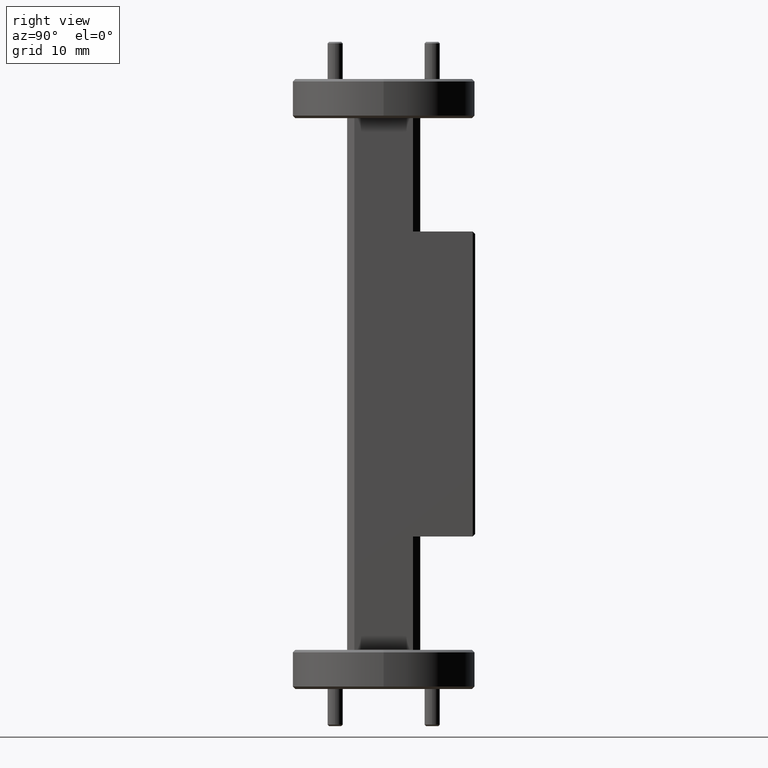
[diagram: clean part render]
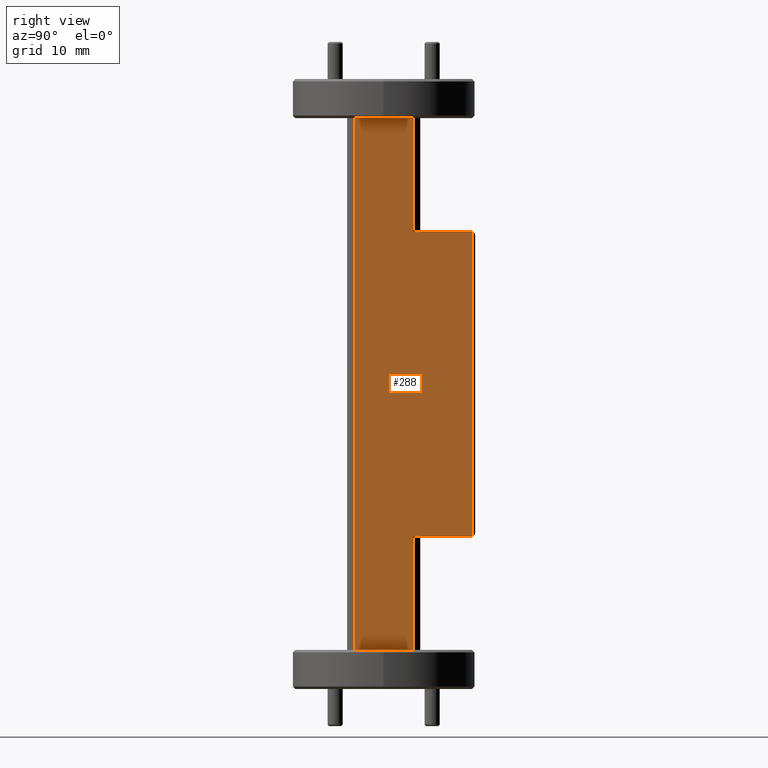
[diagram: same view with one face highlighted and labeled with its STEP entity id]
A machine part, right view. The second image highlights one B-rep face of the part: STEP entity #288.
In plain terms, the highlighted planar face has unit normal (-1, -0, 0).
Its self-contained STEP definition (entity closure, byte-faithful):
#84 = DIRECTION ( 'NONE',  ( 0.000000000000000000, 0.000000000000000000, -1.000000000000000000 ) ) ;
#175 = VECTOR ( 'NONE', #635, 39.37007874015748143 ) ;
#288 = ADVANCED_FACE ( 'NONE', ( #2450 ), #2980, .F. ) ;
#466 = CARTESIAN_POINT ( 'NONE',  ( 0.1499999999999999389, -0.1200000000000000927, 1.090000000000000080 ) ) ;
#539 = EDGE_LOOP ( 'NONE', ( #3069, #7024, #2588, #1693, #2800, #1832, #2446, #2776 ) ) ;
#572 = VERTEX_POINT ( 'NONE', #466 ) ;
#606 = DIRECTION ( 'NONE',  ( 0.000000000000000000, 0.000000000000000000, 1.000000000000000000 ) ) ;
#635 = DIRECTION ( 'NONE',  ( 7.588466649067396596E-17, 1.000000000000000000, -0.000000000000000000 ) ) ;
#704 = EDGE_CURVE ( 'NONE', #572, #5212, #5329, .T. ) ;
#751 = DIRECTION ( 'NONE',  ( 0.000000000000000000, 0.000000000000000000, 1.000000000000000000 ) ) ;
#993 = LINE ( 'NONE', #1545, #2377 ) ;
#1072 = VECTOR ( 'NONE', #84, 39.37007874015748143 ) ;
#1324 = CARTESIAN_POINT ( 'NONE',  ( 0.1499999999999999944, 0.1987500000000000100, 0.2500000000000000000 ) ) ;
#1331 = LINE ( 'NONE', #4224, #175 ) ;
#1356 = DIRECTION ( 'NONE',  ( -1.000000000000000000, -1.348150961071065097E-31, 1.224646799147351482E-16 ) ) ;
#1545 = CARTESIAN_POINT ( 'NONE',  ( 0.1499999999999998834, 0.1499999999999999389, 1.090000000000000080 ) ) ;
#1643 = CARTESIAN_POINT ( 'NONE',  ( 0.1499999999999998834, 0.1199999999999997041, 0.6250000000000000000 ) ) ;
#1693 = ORIENTED_EDGE ( 'NONE', *, *, #2790, .T. ) ;
#1725 = CARTESIAN_POINT ( 'NONE',  ( 0.1499999999999998557, 0.3649999999999997691, 1.250000000000000000 ) ) ;
#1809 = LINE ( 'NONE', #6397, #7178 ) ;
#1832 = ORIENTED_EDGE ( 'NONE', *, *, #704, .T. ) ;
#2002 = VECTOR ( 'NONE', #4659, 39.37007874015748143 ) ;
#2100 = VERTEX_POINT ( 'NONE', #6877 ) ;
#2137 = CARTESIAN_POINT ( 'NONE',  ( 0.1499999999999998834, 0.1199999999999997041, -1.090000000000000080 ) ) ;
#2377 = VECTOR ( 'NONE', #6255, 39.37007874015748143 ) ;
#2446 = ORIENTED_EDGE ( 'NONE', *, *, #6769, .F. ) ;
#2450 = FACE_OUTER_BOUND ( 'NONE', #539, .T. ) ;
#2588 = ORIENTED_EDGE ( 'NONE', *, *, #2690, .F. ) ;
#2608 = EDGE_CURVE ( 'NONE', #572, #2100, #993, .T. ) ;
#2658 = EDGE_CURVE ( 'NONE', #7247, #5863, #5244, .T. ) ;
#2690 = EDGE_CURVE ( 'NONE', #4069, #5863, #1809, .T. ) ;
#2776 = ORIENTED_EDGE ( 'NONE', *, *, #5494, .T. ) ;
#2790 = EDGE_CURVE ( 'NONE', #4069, #2100, #5859, .T. ) ;
#2800 = ORIENTED_EDGE ( 'NONE', *, *, #2608, .F. ) ;
#2980 = PLANE ( 'NONE',  #3457 ) ;
#3068 = CARTESIAN_POINT ( 'NONE',  ( 0.1500000000000000777, 0.1199999999999997041, -0.6250000000000000000 ) ) ;
#3069 = ORIENTED_EDGE ( 'NONE', *, *, #5421, .T. ) ;
#3092 = CARTESIAN_POINT ( 'NONE',  ( 0.1499999999999999389, -0.1200000000000000927, 1.250000000000000000 ) ) ;
#3129 = DIRECTION ( 'NONE',  ( 1.707404996040165005E-16, -1.000000000000000000, 0.000000000000000000 ) ) ;
#3226 = CARTESIAN_POINT ( 'NONE',  ( 0.1500000000000001055, 0.3649999999999997691, 0.6250000000000000000 ) ) ;
#3457 = AXIS2_PLACEMENT_3D ( 'NONE', #1324, #1356, #6578 ) ;
#3460 = DIRECTION ( 'NONE',  ( 7.588466649067396596E-17, 1.000000000000000000, -0.000000000000000000 ) ) ;
#3747 = LINE ( 'NONE', #4200, #5588 ) ;
#4069 = VERTEX_POINT ( 'NONE', #1643 ) ;
#4200 = CARTESIAN_POINT ( 'NONE',  ( 0.1499999999999998834, 0.1499999999999999389, -1.090000000000000080 ) ) ;
#4224 = CARTESIAN_POINT ( 'NONE',  ( 0.1500000000000001055, 0.3749999999999999445, -0.6250000000000000000 ) ) ;
#4272 = VERTEX_POINT ( 'NONE', #3068 ) ;
#4460 = VECTOR ( 'NONE', #606, 39.37007874015748143 ) ;
#4659 = DIRECTION ( 'NONE',  ( 0.000000000000000000, 0.000000000000000000, 1.000000000000000000 ) ) ;
#4748 = CARTESIAN_POINT ( 'NONE',  ( 0.1499999999999998834, 0.1199999999999997041, 1.250000000000000000 ) ) ;
#4930 = CARTESIAN_POINT ( 'NONE',  ( 0.1499999999999998834, 0.1199999999999997041, 1.250000000000000000 ) ) ;
#5212 = VERTEX_POINT ( 'NONE', #6211 ) ;
#5244 = LINE ( 'NONE', #1725, #2002 ) ;
#5329 = LINE ( 'NONE', #3092, #1072 ) ;
#5421 = EDGE_CURVE ( 'NONE', #4272, #7247, #1331, .T. ) ;
#5494 = EDGE_CURVE ( 'NONE', #7382, #4272, #6542, .T. ) ;
#5588 = VECTOR ( 'NONE', #3129, 39.37007874015748143 ) ;
#5859 = LINE ( 'NONE', #4748, #4460 ) ;
#5863 = VERTEX_POINT ( 'NONE', #3226 ) ;
#6122 = CARTESIAN_POINT ( 'NONE',  ( 0.1500000000000001055, 0.3649999999999997691, -0.6250000000000000000 ) ) ;
#6211 = CARTESIAN_POINT ( 'NONE',  ( 0.1499999999999999389, -0.1200000000000000927, -1.090000000000000080 ) ) ;
#6255 = DIRECTION ( 'NONE',  ( -1.707404996040165005E-16, 1.000000000000000000, 0.000000000000000000 ) ) ;
#6397 = CARTESIAN_POINT ( 'NONE',  ( 0.1500000000000001055, 0.3749999999999999445, 0.6250000000000000000 ) ) ;
#6542 = LINE ( 'NONE', #4930, #7074 ) ;
#6578 = DIRECTION ( 'NONE',  ( -2.677847508671350541E-18, 0.9997609042218911224, -0.02186628430773379997 ) ) ;
#6769 = EDGE_CURVE ( 'NONE', #7382, #5212, #3747, .T. ) ;
#6877 = CARTESIAN_POINT ( 'NONE',  ( 0.1499999999999998834, 0.1199999999999997041, 1.090000000000000080 ) ) ;
#7024 = ORIENTED_EDGE ( 'NONE', *, *, #2658, .T. ) ;
#7074 = VECTOR ( 'NONE', #751, 39.37007874015748143 ) ;
#7178 = VECTOR ( 'NONE', #3460, 39.37007874015748143 ) ;
#7247 = VERTEX_POINT ( 'NONE', #6122 ) ;
#7382 = VERTEX_POINT ( 'NONE', #2137 ) ;